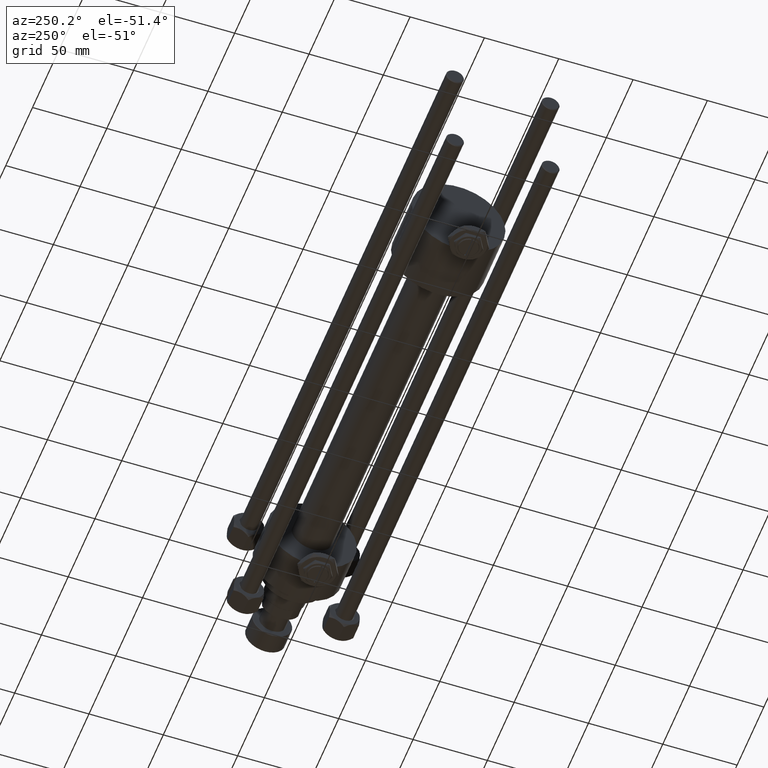
[diagram: clean part render]
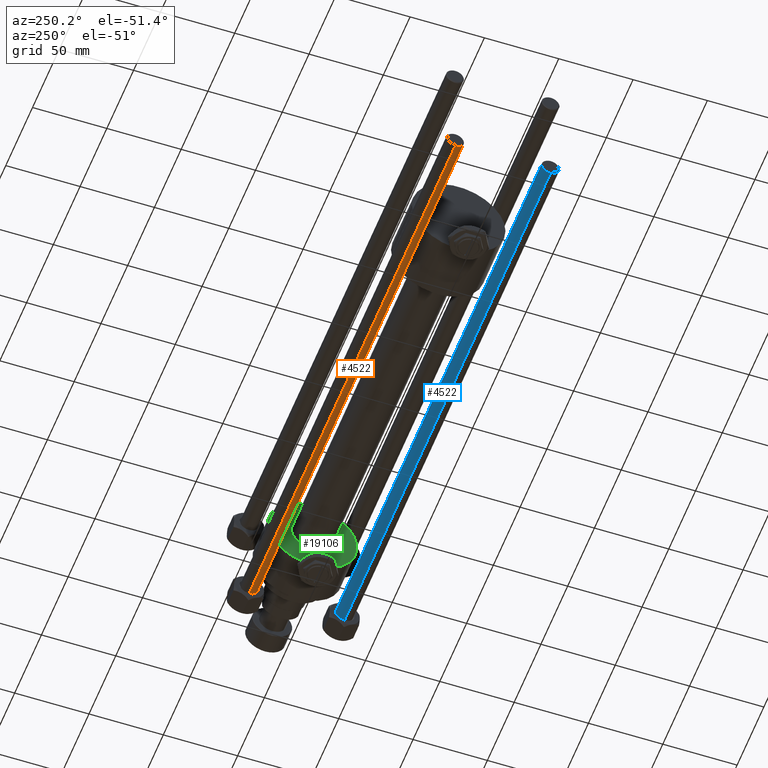
[diagram: same view with three faces highlighted in distinct colors, each labeled with its STEP entity id]
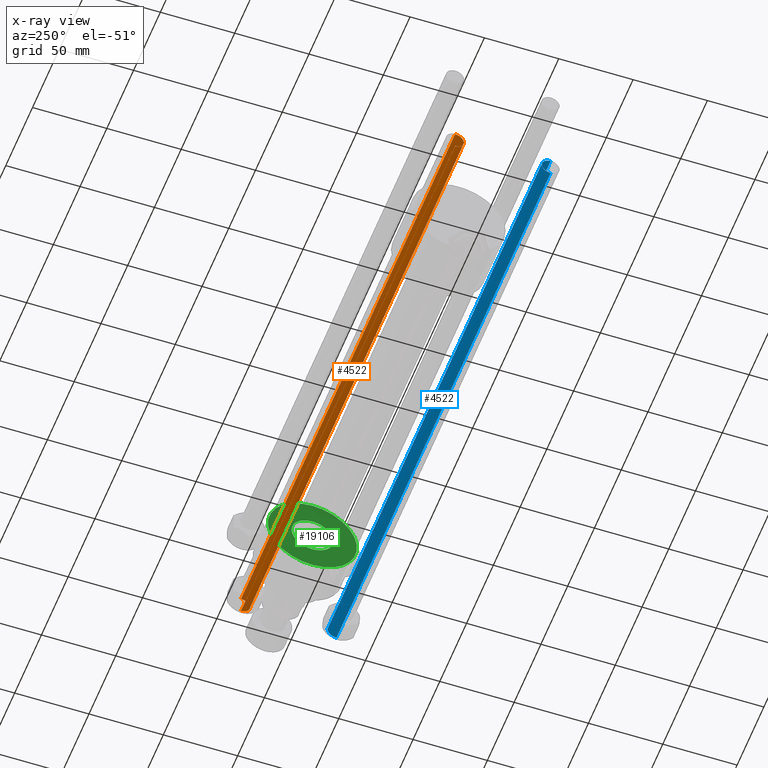
[diagram: x-ray of the same camera — body ghosted, the three highlighted faces saturated]
A machine part, auxiliary view with three faces highlighted in distinct colors.
The next image is the same camera in x-ray (body ghosted, the three faces saturated) — at least one of them is partly hidden behind the body in this view.
Their STEP definitions:

[orange] entity #4522 — the highlighted cylindrical surface (edge-blend (fillet) strip) has radius 6 mm, axis along (1, 0, -0).
#1017 = CARTESIAN_POINT ( 'NONE',  ( 0.000000000000000000, 0.000000000000000000, 400.5000000000003411 ) ) ;
#2383 = DIRECTION ( 'NONE',  ( 1.000000000000000000, 0.000000000000000000, 0.000000000000000000 ) ) ;
#4025 = CARTESIAN_POINT ( 'NONE',  ( 0.000000000000000000, 0.000000000000000000, 401.0000000000000000 ) ) ;
#4069 = EDGE_CURVE ( 'NONE', #40860, #25406, #25054, .T. ) ;
#4522 = ADVANCED_FACE ( 'NONE', ( #43709 ), #24102, .T. ) ;
#7924 = DIRECTION ( 'NONE',  ( 1.000000000000000000, 0.000000000000000000, 0.000000000000000000 ) ) ;
#7996 = DIRECTION ( 'NONE',  ( -0.000000000000000000, -0.000000000000000000, -1.000000000000000000 ) ) ;
#8333 = DIRECTION ( 'NONE',  ( -0.000000000000000000, -0.000000000000000000, -1.000000000000000000 ) ) ;
#9400 = CARTESIAN_POINT ( 'NONE',  ( -6.000000000000000888, 0.000000000000000000, 400.5000000000003411 ) ) ;
#11364 = ORIENTED_EDGE ( 'NONE', *, *, #24665, .T. ) ;
#11539 = AXIS2_PLACEMENT_3D ( 'NONE', #1017, #12671, #7924 ) ;
#12671 = DIRECTION ( 'NONE',  ( 0.000000000000000000, 0.000000000000000000, -1.000000000000000000 ) ) ;
#14241 = ORIENTED_EDGE ( 'NONE', *, *, #51905, .F. ) ;
#15392 = DIRECTION ( 'NONE',  ( -1.000000000000000000, 0.000000000000000000, 0.000000000000000000 ) ) ;
#16140 = CARTESIAN_POINT ( 'NONE',  ( 6.000000000000000888, 7.347880794884119736E-16, 0.5000000000003335110 ) ) ;
#16255 = CARTESIAN_POINT ( 'NONE',  ( 6.000000000000000888, 7.347880794884119736E-16, 401.0000000000000000 ) ) ;
#17133 = CARTESIAN_POINT ( 'NONE',  ( -6.000000000000000888, 0.000000000000000000, 0.5000000000003335110 ) ) ;
#17280 = VERTEX_POINT ( 'NONE', #16140 ) ;
#22462 = CARTESIAN_POINT ( 'NONE',  ( 0.000000000000000000, 0.000000000000000000, 0.5000000000003335110 ) ) ;
#24102 = CYLINDRICAL_SURFACE ( 'NONE', #37744, 6.000000000000000888 ) ;
#24665 = EDGE_CURVE ( 'NONE', #25406, #31388, #24926, .T. ) ;
#24926 = LINE ( 'NONE', #29156, #36972 ) ;
#25054 = CIRCLE ( 'NONE', #11539, 6.000000000000000888 ) ;
#25081 = VECTOR ( 'NONE', #8333, 1000.000000000000000 ) ;
#25406 = VERTEX_POINT ( 'NONE', #9400 ) ;
#29156 = CARTESIAN_POINT ( 'NONE',  ( -6.000000000000000888, 0.000000000000000000, 401.0000000000000000 ) ) ;
#29278 = ORIENTED_EDGE ( 'NONE', *, *, #4069, .T. ) ;
#31388 = VERTEX_POINT ( 'NONE', #17133 ) ;
#33048 = EDGE_CURVE ( 'NONE', #31388, #17280, #47381, .T. ) ;
#36359 = LINE ( 'NONE', #16255, #25081 ) ;
#36972 = VECTOR ( 'NONE', #41850, 1000.000000000000000 ) ;
#37240 = AXIS2_PLACEMENT_3D ( 'NONE', #22462, #51313, #2383 ) ;
#37294 = EDGE_LOOP ( 'NONE', ( #14241, #29278, #11364, #51276 ) ) ;
#37744 = AXIS2_PLACEMENT_3D ( 'NONE', #4025, #7996, #15392 ) ;
#40860 = VERTEX_POINT ( 'NONE', #50720 ) ;
#41850 = DIRECTION ( 'NONE',  ( -0.000000000000000000, -0.000000000000000000, -1.000000000000000000 ) ) ;
#43709 = FACE_OUTER_BOUND ( 'NONE', #37294, .T. ) ;
#47381 = CIRCLE ( 'NONE', #37240, 6.000000000000000888 ) ;
#50720 = CARTESIAN_POINT ( 'NONE',  ( 6.000000000000000888, 7.347880794884119736E-16, 400.5000000000003411 ) ) ;
#51276 = ORIENTED_EDGE ( 'NONE', *, *, #33048, .T. ) ;
#51313 = DIRECTION ( 'NONE',  ( -0.000000000000000000, -0.000000000000000000, 1.000000000000000000 ) ) ;
#51905 = EDGE_CURVE ( 'NONE', #40860, #17280, #36359, .T. ) ;

[blue] entity #4522 — the highlighted cylindrical surface (edge-blend (fillet) strip) has radius 6 mm, axis along (-1, 0, 0).
#1017 = CARTESIAN_POINT ( 'NONE',  ( 0.000000000000000000, 0.000000000000000000, 400.5000000000003411 ) ) ;
#2383 = DIRECTION ( 'NONE',  ( 1.000000000000000000, 0.000000000000000000, 0.000000000000000000 ) ) ;
#4025 = CARTESIAN_POINT ( 'NONE',  ( 0.000000000000000000, 0.000000000000000000, 401.0000000000000000 ) ) ;
#4069 = EDGE_CURVE ( 'NONE', #40860, #25406, #25054, .T. ) ;
#4522 = ADVANCED_FACE ( 'NONE', ( #43709 ), #24102, .T. ) ;
#7924 = DIRECTION ( 'NONE',  ( 1.000000000000000000, 0.000000000000000000, 0.000000000000000000 ) ) ;
#7996 = DIRECTION ( 'NONE',  ( -0.000000000000000000, -0.000000000000000000, -1.000000000000000000 ) ) ;
#8333 = DIRECTION ( 'NONE',  ( -0.000000000000000000, -0.000000000000000000, -1.000000000000000000 ) ) ;
#9400 = CARTESIAN_POINT ( 'NONE',  ( -6.000000000000000888, 0.000000000000000000, 400.5000000000003411 ) ) ;
#11364 = ORIENTED_EDGE ( 'NONE', *, *, #24665, .T. ) ;
#11539 = AXIS2_PLACEMENT_3D ( 'NONE', #1017, #12671, #7924 ) ;
#12671 = DIRECTION ( 'NONE',  ( 0.000000000000000000, 0.000000000000000000, -1.000000000000000000 ) ) ;
#14241 = ORIENTED_EDGE ( 'NONE', *, *, #51905, .F. ) ;
#15392 = DIRECTION ( 'NONE',  ( -1.000000000000000000, 0.000000000000000000, 0.000000000000000000 ) ) ;
#16140 = CARTESIAN_POINT ( 'NONE',  ( 6.000000000000000888, 7.347880794884119736E-16, 0.5000000000003335110 ) ) ;
#16255 = CARTESIAN_POINT ( 'NONE',  ( 6.000000000000000888, 7.347880794884119736E-16, 401.0000000000000000 ) ) ;
#17133 = CARTESIAN_POINT ( 'NONE',  ( -6.000000000000000888, 0.000000000000000000, 0.5000000000003335110 ) ) ;
#17280 = VERTEX_POINT ( 'NONE', #16140 ) ;
#22462 = CARTESIAN_POINT ( 'NONE',  ( 0.000000000000000000, 0.000000000000000000, 0.5000000000003335110 ) ) ;
#24102 = CYLINDRICAL_SURFACE ( 'NONE', #37744, 6.000000000000000888 ) ;
#24665 = EDGE_CURVE ( 'NONE', #25406, #31388, #24926, .T. ) ;
#24926 = LINE ( 'NONE', #29156, #36972 ) ;
#25054 = CIRCLE ( 'NONE', #11539, 6.000000000000000888 ) ;
#25081 = VECTOR ( 'NONE', #8333, 1000.000000000000000 ) ;
#25406 = VERTEX_POINT ( 'NONE', #9400 ) ;
#29156 = CARTESIAN_POINT ( 'NONE',  ( -6.000000000000000888, 0.000000000000000000, 401.0000000000000000 ) ) ;
#29278 = ORIENTED_EDGE ( 'NONE', *, *, #4069, .T. ) ;
#31388 = VERTEX_POINT ( 'NONE', #17133 ) ;
#33048 = EDGE_CURVE ( 'NONE', #31388, #17280, #47381, .T. ) ;
#36359 = LINE ( 'NONE', #16255, #25081 ) ;
#36972 = VECTOR ( 'NONE', #41850, 1000.000000000000000 ) ;
#37240 = AXIS2_PLACEMENT_3D ( 'NONE', #22462, #51313, #2383 ) ;
#37294 = EDGE_LOOP ( 'NONE', ( #14241, #29278, #11364, #51276 ) ) ;
#37744 = AXIS2_PLACEMENT_3D ( 'NONE', #4025, #7996, #15392 ) ;
#40860 = VERTEX_POINT ( 'NONE', #50720 ) ;
#41850 = DIRECTION ( 'NONE',  ( -0.000000000000000000, -0.000000000000000000, -1.000000000000000000 ) ) ;
#43709 = FACE_OUTER_BOUND ( 'NONE', #37294, .T. ) ;
#47381 = CIRCLE ( 'NONE', #37240, 6.000000000000000888 ) ;
#50720 = CARTESIAN_POINT ( 'NONE',  ( 6.000000000000000888, 7.347880794884119736E-16, 400.5000000000003411 ) ) ;
#51276 = ORIENTED_EDGE ( 'NONE', *, *, #33048, .T. ) ;
#51313 = DIRECTION ( 'NONE',  ( -0.000000000000000000, -0.000000000000000000, 1.000000000000000000 ) ) ;
#51905 = EDGE_CURVE ( 'NONE', #40860, #17280, #36359, .T. ) ;

[green] entity #19106 — the highlighted planar face has unit normal (1, 0, -0).
#825 = DIRECTION ( 'NONE',  ( -0.000000000000000000, -0.000000000000000000, -1.000000000000000000 ) ) ;
#1342 = CARTESIAN_POINT ( 'NONE',  ( 0.000000000000000000, 0.000000000000000000, 0.000000000000000000 ) ) ;
#3501 = EDGE_CURVE ( 'NONE', #23918, #26651, #32607, .T. ) ;
#4316 = CARTESIAN_POINT ( 'NONE',  ( 0.000000000000000000, 0.000000000000000000, 0.000000000000000000 ) ) ;
#4702 = CIRCLE ( 'NONE', #34248, 14.00000000000000178 ) ;
#5536 = CIRCLE ( 'NONE', #31693, 30.00000000000000000 ) ;
#8725 = AXIS2_PLACEMENT_3D ( 'NONE', #42553, #22447, #38585 ) ;
#11169 = DIRECTION ( 'NONE',  ( -0.000000000000000000, -0.000000000000000000, -1.000000000000000000 ) ) ;
#13037 = FACE_OUTER_BOUND ( 'NONE', #39614, .T. ) ;
#15072 = CARTESIAN_POINT ( 'NONE',  ( 0.000000000000000000, 0.000000000000000000, 0.000000000000000000 ) ) ;
#15746 = CARTESIAN_POINT ( 'NONE',  ( 30.00000000000000000, 3.673940397442059178E-15, 0.000000000000000000 ) ) ;
#16429 = DIRECTION ( 'NONE',  ( 1.000000000000000000, 0.000000000000000000, 0.000000000000000000 ) ) ;
#17086 = ORIENTED_EDGE ( 'NONE', *, *, #19721, .F. ) ;
#17330 = EDGE_LOOP ( 'NONE', ( #47862, #17086 ) ) ;
#19010 = CARTESIAN_POINT ( 'NONE',  ( 14.00000000000000178, 0.000000000000000000, 0.000000000000000000 ) ) ;
#19106 = ADVANCED_FACE ( 'NONE', ( #43482, #13037 ), #37102, .F. ) ;
#19721 = EDGE_CURVE ( 'NONE', #26651, #23918, #4702, .T. ) ;
#19940 = EDGE_CURVE ( 'NONE', #26786, #38419, #5536, .T. ) ;
#22447 = DIRECTION ( 'NONE',  ( 0.000000000000000000, 0.000000000000000000, 1.000000000000000000 ) ) ;
#22485 = AXIS2_PLACEMENT_3D ( 'NONE', #47416, #11169, #38425 ) ;
#23918 = VERTEX_POINT ( 'NONE', #19010 ) ;
#25272 = ORIENTED_EDGE ( 'NONE', *, *, #36279, .F. ) ;
#26651 = VERTEX_POINT ( 'NONE', #36248 ) ;
#26786 = VERTEX_POINT ( 'NONE', #33035 ) ;
#31693 = AXIS2_PLACEMENT_3D ( 'NONE', #15072, #51842, #43360 ) ;
#32093 = DIRECTION ( 'NONE',  ( 1.000000000000000000, 0.000000000000000000, -0.000000000000000000 ) ) ;
#32605 = DIRECTION ( 'NONE',  ( 0.000000000000000000, 0.000000000000000000, 1.000000000000000000 ) ) ;
#32607 = CIRCLE ( 'NONE', #22485, 14.00000000000000178 ) ;
#33035 = CARTESIAN_POINT ( 'NONE',  ( -30.00000000000000000, 0.000000000000000000, 0.000000000000000000 ) ) ;
#33845 = ORIENTED_EDGE ( 'NONE', *, *, #19940, .F. ) ;
#34248 = AXIS2_PLACEMENT_3D ( 'NONE', #1342, #825, #16429 ) ;
#36248 = CARTESIAN_POINT ( 'NONE',  ( -14.00000000000000178, 1.714505518806294835E-15, 0.000000000000000000 ) ) ;
#36279 = EDGE_CURVE ( 'NONE', #38419, #26786, #50108, .T. ) ;
#37102 = PLANE ( 'NONE',  #42674 ) ;
#38419 = VERTEX_POINT ( 'NONE', #15746 ) ;
#38425 = DIRECTION ( 'NONE',  ( 1.000000000000000000, 0.000000000000000000, 0.000000000000000000 ) ) ;
#38585 = DIRECTION ( 'NONE',  ( 1.000000000000000000, 0.000000000000000000, 0.000000000000000000 ) ) ;
#39614 = EDGE_LOOP ( 'NONE', ( #33845, #25272 ) ) ;
#42553 = CARTESIAN_POINT ( 'NONE',  ( 0.000000000000000000, 0.000000000000000000, 0.000000000000000000 ) ) ;
#42674 = AXIS2_PLACEMENT_3D ( 'NONE', #4316, #32605, #32093 ) ;
#43360 = DIRECTION ( 'NONE',  ( 1.000000000000000000, 0.000000000000000000, 0.000000000000000000 ) ) ;
#43482 = FACE_BOUND ( 'NONE', #17330, .T. ) ;
#47416 = CARTESIAN_POINT ( 'NONE',  ( 0.000000000000000000, 0.000000000000000000, 0.000000000000000000 ) ) ;
#47862 = ORIENTED_EDGE ( 'NONE', *, *, #3501, .F. ) ;
#50108 = CIRCLE ( 'NONE', #8725, 30.00000000000000000 ) ;
#51842 = DIRECTION ( 'NONE',  ( 0.000000000000000000, 0.000000000000000000, 1.000000000000000000 ) ) ;